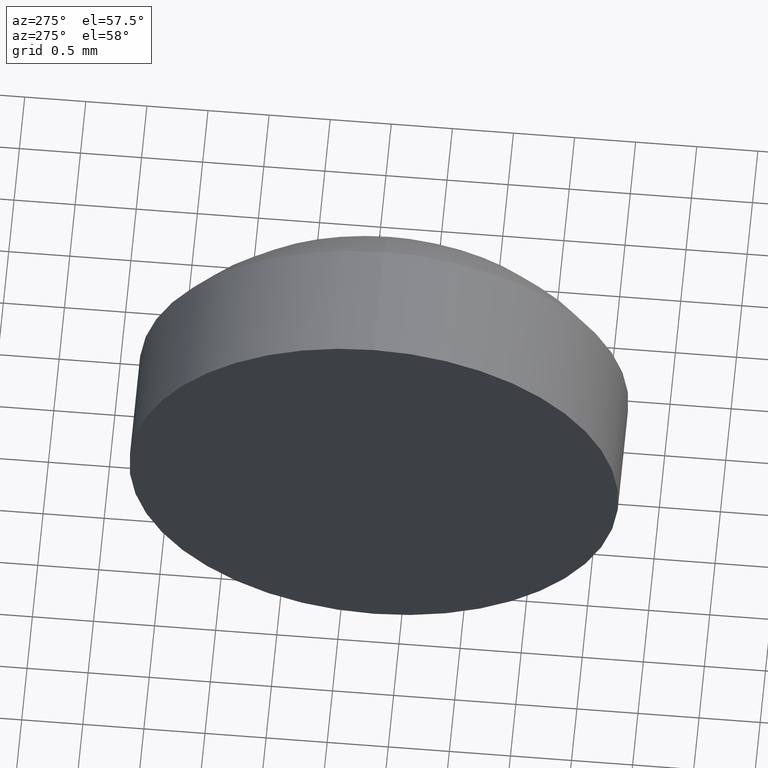
[diagram: clean part render]
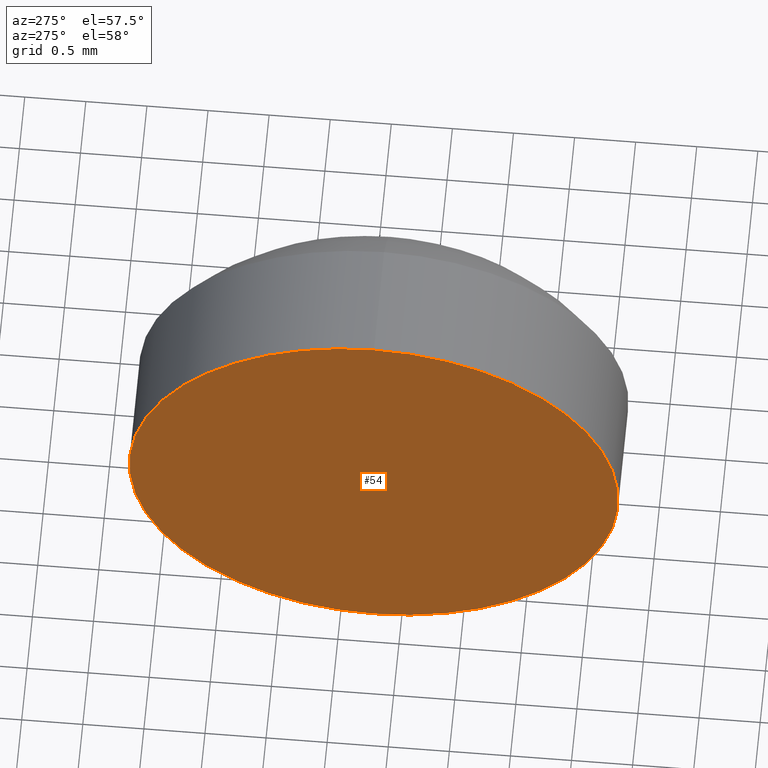
[diagram: same view with one face highlighted and labeled with its STEP entity id]
A machine part, auxiliary view. The second image highlights one B-rep face of the part: STEP entity #54.
In plain terms, the highlighted planar face has unit normal (1, 0, 0).
Its self-contained STEP definition (entity closure, byte-faithful):
#2 = AXIS2_PLACEMENT_3D ( 'NONE', #134, #108, #67 ) ;
#7 = DIRECTION ( 'NONE',  ( 0.0000000000000000000, 0.0000000000000000000, -1.000000000000000000 ) ) ;
#15 = ORIENTED_EDGE ( 'NONE', *, *, #143, .T. ) ;
#20 = DIRECTION ( 'NONE',  ( 1.000000000000000000, 0.0000000000000000000, 0.0000000000000000000 ) ) ;
#30 = AXIS2_PLACEMENT_3D ( 'NONE', #63, #156, #77 ) ;
#36 = FACE_OUTER_BOUND ( 'NONE', #90, .T. ) ;
#44 = CIRCLE ( 'NONE', #30, 2.001348738342852300 ) ;
#53 = EDGE_CURVE ( 'NONE', #110, #71, #44, .T. ) ;
#54 = ADVANCED_FACE ( 'NONE', ( #36 ), #92, .F. ) ;
#63 = CARTESIAN_POINT ( 'NONE',  ( 385.7147637488533300, -62.77572471947115700, 0.0000000000000000000 ) ) ;
#67 = DIRECTION ( 'NONE',  ( 0.0000000000000000000, 0.0000000000000000000, 1.000000000000000000 ) ) ;
#71 = VERTEX_POINT ( 'NONE', #93 ) ;
#77 = DIRECTION ( 'NONE',  ( 0.0000000000000000000, 0.0000000000000000000, 1.000000000000000000 ) ) ;
#81 = CARTESIAN_POINT ( 'NONE',  ( 385.7147637488533300, -62.77572471947115700, -2.001348738342852300 ) ) ;
#90 = EDGE_LOOP ( 'NONE', ( #15, #137 ) ) ;
#92 = PLANE ( 'NONE',  #157 ) ;
#93 = CARTESIAN_POINT ( 'NONE',  ( 385.7147637488533300, -62.77572471947115700, 2.001348738342852300 ) ) ;
#98 = CIRCLE ( 'NONE', #2, 2.001348738342852300 ) ;
#108 = DIRECTION ( 'NONE',  ( -1.000000000000000000, -0.0000000000000000000, -0.0000000000000000000 ) ) ;
#110 = VERTEX_POINT ( 'NONE', #81 ) ;
#134 = CARTESIAN_POINT ( 'NONE',  ( 385.7147637488533300, -62.77572471947115700, 0.0000000000000000000 ) ) ;
#137 = ORIENTED_EDGE ( 'NONE', *, *, #53, .T. ) ;
#143 = EDGE_CURVE ( 'NONE', #71, #110, #98, .T. ) ;
#154 = CARTESIAN_POINT ( 'NONE',  ( 385.7147637488533300, -62.77572471947115700, 0.0000000000000000000 ) ) ;
#156 = DIRECTION ( 'NONE',  ( -1.000000000000000000, -0.0000000000000000000, -0.0000000000000000000 ) ) ;
#157 = AXIS2_PLACEMENT_3D ( 'NONE', #154, #20, #7 ) ;